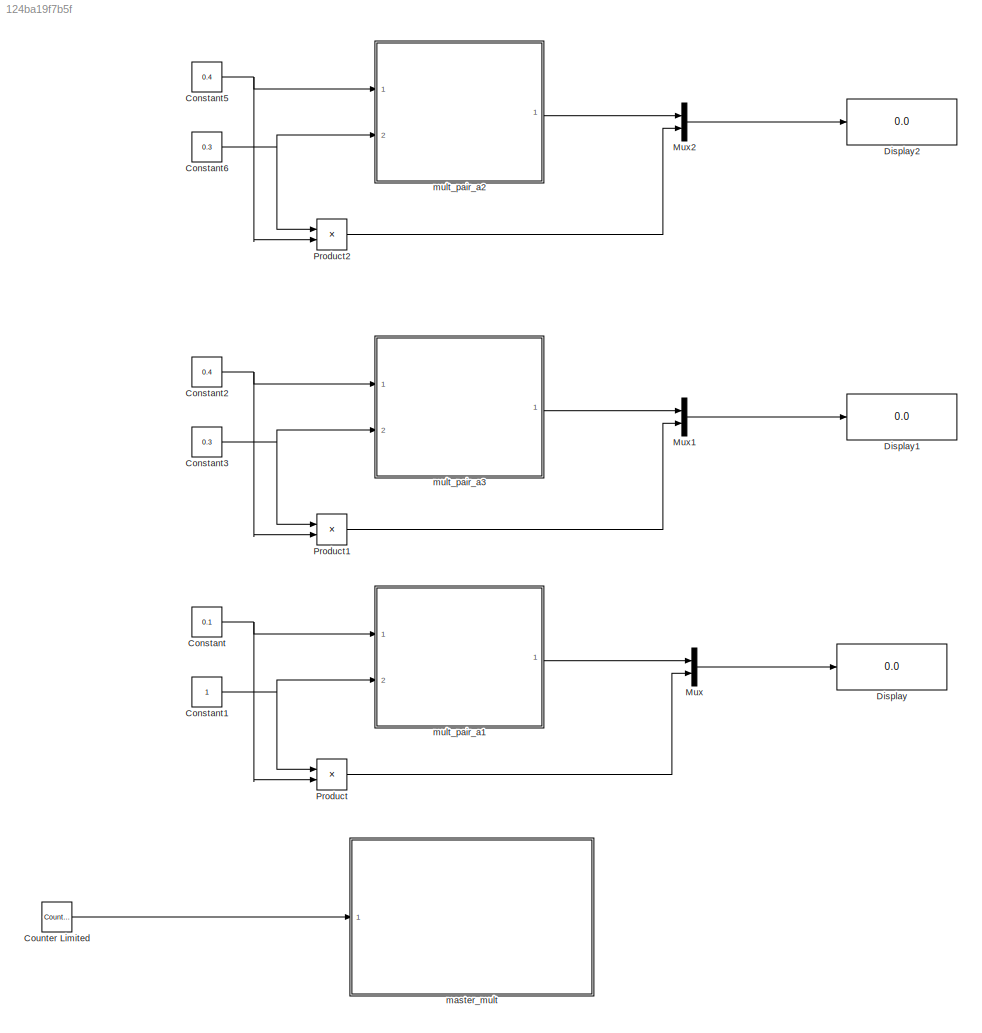
MODEL slx_124ba19f7b5f
KIND model
CONFIG AbsTol = auto
CONFIG FixedStep = auto
CONFIG MaxStep = auto
CONFIG MinStep = auto
CONFIG RelTol = 1e-3
CONFIG SampleTimeConstraint = Unconstrained
CONFIG Solver = ode45
CONFIG SolverMode = Auto
CONFIG SolverName = ode45
CONFIG StartTime = 0.0
CONFIG StopTime = 10.0
BLOCK [Constant] Constant
  OutDataTypeStr = fixdt(1,9,9)
  SampleTime = -1
  Value = 0.1
BLOCK [Constant] Constant1
  OutDataTypeStr = fixdt(0,10,10)
BLOCK [Constant] Constant2
  OutDataTypeStr = fixdt(1,10,10)
  Value = 0.4
BLOCK [Constant] Constant3
  OutDataTypeStr = fixdt(1,6,6)
  Value = 0.3
BLOCK [Constant] Constant5
  OutDataTypeStr = fixdt(0,10,10)
  Value = 0.4
BLOCK [Constant] Constant6
  OutDataTypeStr = fixdt(0,6,6)
  Value = 0.3
BLOCK [Reference] Counter Limited  REF=simulink/Sources/Counter
Limited
  Ports = [0, 1]
  SourceBlock = simulink/Sources/Counter\nLimited
  SourceType = Counter Limited
  tsamp = 1
  uplimit = 7
BLOCK [Display] Display
  Decimation = 1
  Ports = [1]
BLOCK [Display] Display1
  Decimation = 1
  Ports = [1]
BLOCK [Display] Display2
  Decimation = 1
  Ports = [1]
BLOCK [Mux] Mux
  DisplayOption = bar
  Inputs = 2
  Ports = [2, 1]
BLOCK [Mux] Mux1
  DisplayOption = bar
  Inputs = 2
  Ports = [2, 1]
BLOCK [Mux] Mux2
  DisplayOption = bar
  Inputs = 2
  Ports = [2, 1]
BLOCK [Product] Product
  InputSameDT = off
  OutDataTypeStr = Inherit: Inherit via internal rule
  Ports = [2, 1]
  RndMeth = Floor
  SaturateOnIntegerOverflow = off
BLOCK [Product] Product1
  InputSameDT = off
  OutDataTypeStr = Inherit: Inherit via internal rule
  Ports = [2, 1]
  RndMeth = Floor
  SaturateOnIntegerOverflow = off
BLOCK [Product] Product2
  InputSameDT = off
  OutDataTypeStr = Inherit: Inherit via internal rule
  Ports = [2, 1]
  RndMeth = Floor
  SaturateOnIntegerOverflow = off
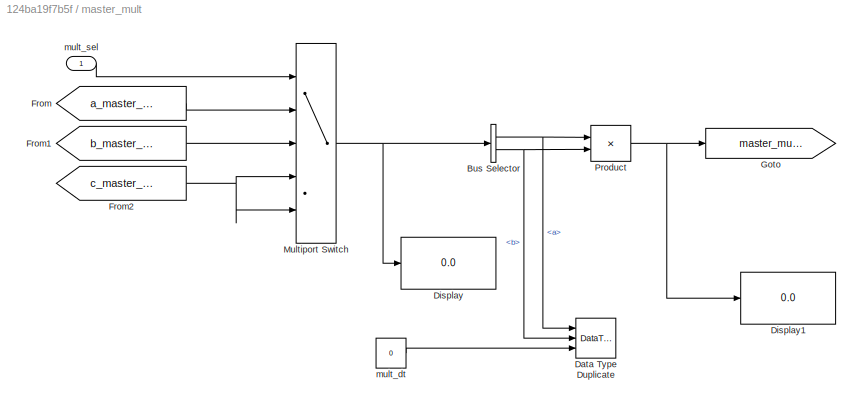
BLOCK [SubSystem] master_mult
  Ports = [1]
  RequestExecContextInheritance = off
BLOCK [BusSelector] master_mult/Bus Selector
  OutputSignals = a,b
  Ports = [1, 2]
BLOCK [DataTypeDuplicate] master_mult/Data Type Duplicate
  NumInputPorts = 3
  Ports = [3]
BLOCK [Display] master_mult/Display
  Decimation = 1
  Ports = [1]
BLOCK [Display] master_mult/Display1
  Decimation = 1
  Ports = [1]
BLOCK [From] master_mult/From
  GotoTag = a_master_mult_in
  TagVisibility = global
BLOCK [From] master_mult/From1
  GotoTag = b_master_mult_in
  TagVisibility = global
BLOCK [From] master_mult/From2
  GotoTag = c_master_mult_in
  TagVisibility = global
BLOCK [Goto] master_mult/Goto
  GotoTag = master_mult_out
  TagVisibility = global
BLOCK [MultiPortSwitch] master_mult/Multiport Switch
  DataPortOrder = Zero-based contiguous
  InputSameDT = off
  Inputs = 4
  Ports = [5, 1]
  SaturateOnIntegerOverflow = off
BLOCK [Product] master_mult/Product
  InputSameDT = off
  OutDataTypeStr = Inherit: Inherit via internal rule
  Ports = [2, 1]
  RndMeth = Floor
  SaturateOnIntegerOverflow = off
BLOCK [Constant] master_mult/mult_dt
  OutDataTypeStr = SP.MULT_DT
  SampleTime = -1
  Value = 0
BLOCK [Inport] master_mult/mult_sel
  IconDisplay = Port number
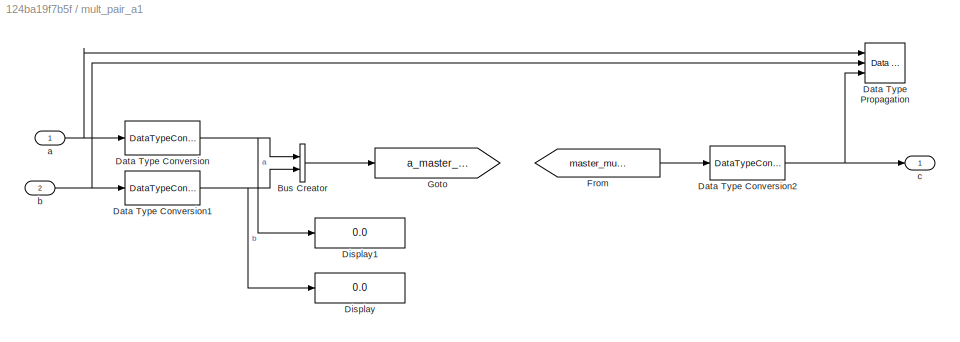
BLOCK [SubSystem] mult_pair_a1
  Ports = [2, 1]
  RequestExecContextInheritance = off
BLOCK [BusCreator] mult_pair_a1/Bus Creator
  DisplayOption = bar
  Inputs = 2
  Ports = [2, 1]
BLOCK [DataTypeConversion] mult_pair_a1/Data Type Conversion
  RndMeth = Floor
  SaturateOnIntegerOverflow = off
BLOCK [DataTypeConversion] mult_pair_a1/Data Type Conversion1
  RndMeth = Floor
  SaturateOnIntegerOverflow = off
BLOCK [DataTypeConversion] mult_pair_a1/Data Type Conversion2
  RndMeth = Floor
  SaturateOnIntegerOverflow = off
BLOCK [Reference] mult_pair_a1/Data Type Propagation  REF=simulink/Signal
Attributes/Data Type
Propagation
  BiasAdd = 0
  BiasBase = Bias1
  BiasMult = 1
  IfRefDouble = double
  IfRefSingle = single
  IsSigned = IsSigned1 or IsSigned2
  NumBitsAdd = 0
  NumBitsAllowFinal = 1:128
  NumBitsBase = NumBits1+NumBits2
  NumBitsMult = 1
  Ports = [3]
  PropDataType = fixdt(1, 16)
  PropDataTypeMode = Inherit via propagation rule
  PropScaling = 2^-10
  PropScalingMode = Inherit via propagation rule
  SlopeAdd = 0
  SlopeBase = Slope1*Slope2
  SlopeMult = 1
  SourceBlock = simulink/Signal\nAttributes/Data Type\nPropagation
  SourceType = Data Type Propagation
  ValuesUsedBestPrec = [5 -7]
BLOCK [Display] mult_pair_a1/Display
  Decimation = 1
  Ports = [1]
BLOCK [Display] mult_pair_a1/Display1
  Decimation = 1
  Ports = [1]
BLOCK [From] mult_pair_a1/From
  GotoTag = master_mult_out
  TagVisibility = global
BLOCK [Goto] mult_pair_a1/Goto
  GotoTag = a_master_mult_in
  TagVisibility = global
BLOCK [Inport] mult_pair_a1/a
  IconDisplay = Port number
BLOCK [Inport] mult_pair_a1/b
  IconDisplay = Port number
  Port = 2
BLOCK [Outport] mult_pair_a1/c
  IconDisplay = Port number
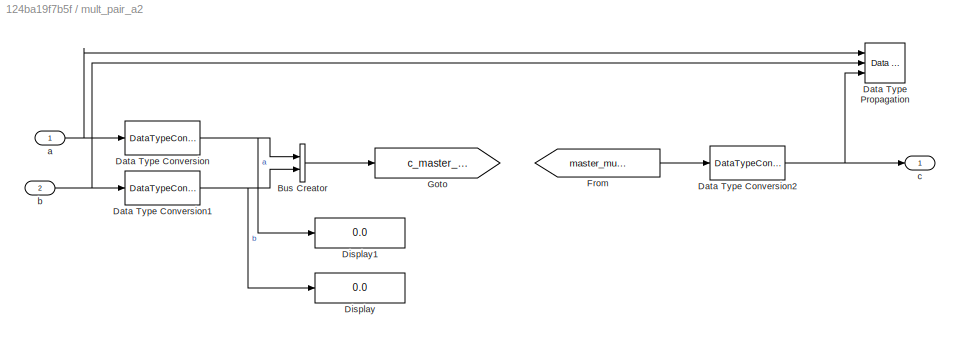
BLOCK [SubSystem] mult_pair_a2
  Ports = [2, 1]
  RequestExecContextInheritance = off
BLOCK [BusCreator] mult_pair_a2/Bus Creator
  DisplayOption = bar
  Inputs = 2
  Ports = [2, 1]
BLOCK [DataTypeConversion] mult_pair_a2/Data Type Conversion
  RndMeth = Floor
  SaturateOnIntegerOverflow = off
BLOCK [DataTypeConversion] mult_pair_a2/Data Type Conversion1
  RndMeth = Floor
  SaturateOnIntegerOverflow = off
BLOCK [DataTypeConversion] mult_pair_a2/Data Type Conversion2
  RndMeth = Floor
  SaturateOnIntegerOverflow = off
BLOCK [Reference] mult_pair_a2/Data Type Propagation  REF=simulink/Signal
Attributes/Data Type
Propagation
  BiasAdd = 0
  BiasBase = Bias1
  BiasMult = 1
  IfRefDouble = double
  IfRefSingle = single
  IsSigned = IsSigned1 or IsSigned2
  NumBitsAdd = 0
  NumBitsAllowFinal = 1:128
  NumBitsBase = NumBits1+NumBits2
  NumBitsMult = 1
  Ports = [3]
  PropDataType = fixdt(1, 16)
  PropDataTypeMode = Inherit via propagation rule
  PropScaling = 2^-10
  PropScalingMode = Inherit via propagation rule
  SlopeAdd = 0
  SlopeBase = Slope1*Slope2
  SlopeMult = 1
  SourceBlock = simulink/Signal\nAttributes/Data Type\nPropagation
  SourceType = Data Type Propagation
  ValuesUsedBestPrec = [5 -7]
BLOCK [Display] mult_pair_a2/Display
  Decimation = 1
  Ports = [1]
BLOCK [Display] mult_pair_a2/Display1
  Decimation = 1
  Ports = [1]
BLOCK [From] mult_pair_a2/From
  GotoTag = master_mult_out
  TagVisibility = global
BLOCK [Goto] mult_pair_a2/Goto
  GotoTag = c_master_mult_in
  TagVisibility = global
BLOCK [Inport] mult_pair_a2/a
  IconDisplay = Port number
BLOCK [Inport] mult_pair_a2/b
  IconDisplay = Port number
  Port = 2
BLOCK [Outport] mult_pair_a2/c
  IconDisplay = Port number
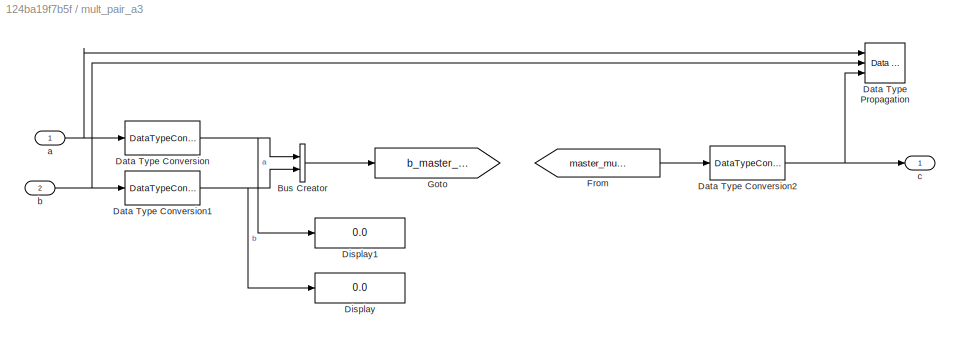
BLOCK [SubSystem] mult_pair_a3
  Ports = [2, 1]
  RequestExecContextInheritance = off
BLOCK [BusCreator] mult_pair_a3/Bus Creator
  DisplayOption = bar
  Inputs = 2
  Ports = [2, 1]
BLOCK [DataTypeConversion] mult_pair_a3/Data Type Conversion
  RndMeth = Floor
  SaturateOnIntegerOverflow = off
BLOCK [DataTypeConversion] mult_pair_a3/Data Type Conversion1
  RndMeth = Floor
  SaturateOnIntegerOverflow = off
BLOCK [DataTypeConversion] mult_pair_a3/Data Type Conversion2
  RndMeth = Floor
  SaturateOnIntegerOverflow = off
BLOCK [Reference] mult_pair_a3/Data Type Propagation  REF=simulink/Signal
Attributes/Data Type
Propagation
  BiasAdd = 0
  BiasBase = Bias1
  BiasMult = 1
  IfRefDouble = double
  IfRefSingle = single
  IsSigned = IsSigned1 or IsSigned2
  NumBitsAdd = 0
  NumBitsAllowFinal = 1:128
  NumBitsBase = NumBits1+NumBits2
  NumBitsMult = 1
  Ports = [3]
  PropDataType = fixdt(1, 16)
  PropDataTypeMode = Inherit via propagation rule
  PropScaling = 2^-10
  PropScalingMode = Inherit via propagation rule
  SlopeAdd = 0
  SlopeBase = Slope1*Slope2
  SlopeMult = 1
  SourceBlock = simulink/Signal\nAttributes/Data Type\nPropagation
  SourceType = Data Type Propagation
  ValuesUsedBestPrec = [5 -7]
BLOCK [Display] mult_pair_a3/Display
  Decimation = 1
  Ports = [1]
BLOCK [Display] mult_pair_a3/Display1
  Decimation = 1
  Ports = [1]
BLOCK [From] mult_pair_a3/From
  GotoTag = master_mult_out
  TagVisibility = global
BLOCK [Goto] mult_pair_a3/Goto
  GotoTag = b_master_mult_in
  TagVisibility = global
BLOCK [Inport] mult_pair_a3/a
  IconDisplay = Port number
BLOCK [Inport] mult_pair_a3/b
  IconDisplay = Port number
  Port = 2
BLOCK [Outport] mult_pair_a3/c
  IconDisplay = Port number
NET Constant1:1 -> Product:1, mult_pair_a1:2
NET Constant2:1 -> Product1:2, mult_pair_a3:1
NET Constant3:1 -> Product1:1, mult_pair_a3:2
NET Constant5:1 -> Product2:2, mult_pair_a2:1
NET Constant6:1 -> Product2:1, mult_pair_a2:2
NET Constant:1 -> Product:2, mult_pair_a1:1
LINE Counter Limited:1 -> master_mult:1
LINE Mux1:1 -> Display1:1
LINE Mux2:1 -> Display2:1
LINE Mux:1 -> Display:1
LINE Product1:1 -> Mux1:2
LINE Product2:1 -> Mux2:2
LINE Product:1 -> Mux:2
NET master_mult/Bus Selector:1 -> master_mult/Data Type Duplicate:1, master_mult/Product:1
NET master_mult/Bus Selector:2 -> master_mult/Data Type Duplicate:2, master_mult/Product:2
LINE master_mult/From1:1 -> master_mult/Multiport Switch:3
NET master_mult/From2:1 -> master_mult/Multiport Switch:4, master_mult/Multiport Switch:5
LINE master_mult/From:1 -> master_mult/Multiport Switch:2
NET master_mult/Multiport Switch:1 -> master_mult/Bus Selector:1, master_mult/Display:1
NET master_mult/Product:1 -> master_mult/Display1:1, master_mult/Goto:1
LINE master_mult/mult_dt:1 -> master_mult/Data Type Duplicate:3
LINE master_mult/mult_sel:1 -> master_mult/Multiport Switch:1
LINE mult_pair_a1/Bus Creator:1 -> mult_pair_a1/Goto:1
NET mult_pair_a1/Data Type Conversion1:1 -> mult_pair_a1/Bus Creator:2, mult_pair_a1/Display:1
NET mult_pair_a1/Data Type Conversion2:1 -> mult_pair_a1/Data Type Propagation:3, mult_pair_a1/c:1
NET mult_pair_a1/Data Type Conversion:1 -> mult_pair_a1/Bus Creator:1, mult_pair_a1/Display1:1
LINE mult_pair_a1/From:1 -> mult_pair_a1/Data Type Conversion2:1
NET mult_pair_a1/a:1 -> mult_pair_a1/Data Type Conversion:1, mult_pair_a1/Data Type Propagation:1
NET mult_pair_a1/b:1 -> mult_pair_a1/Data Type Conversion1:1, mult_pair_a1/Data Type Propagation:2
LINE mult_pair_a1:1 -> Mux:1
LINE mult_pair_a2/Bus Creator:1 -> mult_pair_a2/Goto:1
NET mult_pair_a2/Data Type Conversion1:1 -> mult_pair_a2/Bus Creator:2, mult_pair_a2/Display:1
NET mult_pair_a2/Data Type Conversion2:1 -> mult_pair_a2/Data Type Propagation:3, mult_pair_a2/c:1
NET mult_pair_a2/Data Type Conversion:1 -> mult_pair_a2/Bus Creator:1, mult_pair_a2/Display1:1
LINE mult_pair_a2/From:1 -> mult_pair_a2/Data Type Conversion2:1
NET mult_pair_a2/a:1 -> mult_pair_a2/Data Type Conversion:1, mult_pair_a2/Data Type Propagation:1
NET mult_pair_a2/b:1 -> mult_pair_a2/Data Type Conversion1:1, mult_pair_a2/Data Type Propagation:2
LINE mult_pair_a2:1 -> Mux2:1
LINE mult_pair_a3/Bus Creator:1 -> mult_pair_a3/Goto:1
NET mult_pair_a3/Data Type Conversion1:1 -> mult_pair_a3/Bus Creator:2, mult_pair_a3/Display:1
NET mult_pair_a3/Data Type Conversion2:1 -> mult_pair_a3/Data Type Propagation:3, mult_pair_a3/c:1
NET mult_pair_a3/Data Type Conversion:1 -> mult_pair_a3/Bus Creator:1, mult_pair_a3/Display1:1
LINE mult_pair_a3/From:1 -> mult_pair_a3/Data Type Conversion2:1
NET mult_pair_a3/a:1 -> mult_pair_a3/Data Type Conversion:1, mult_pair_a3/Data Type Propagation:1
NET mult_pair_a3/b:1 -> mult_pair_a3/Data Type Conversion1:1, mult_pair_a3/Data Type Propagation:2
LINE mult_pair_a3:1 -> Mux1:1
note: NET lines group one-source signal fan-out (src -> all destinations, sorted); 1:1 wires keep LINE
